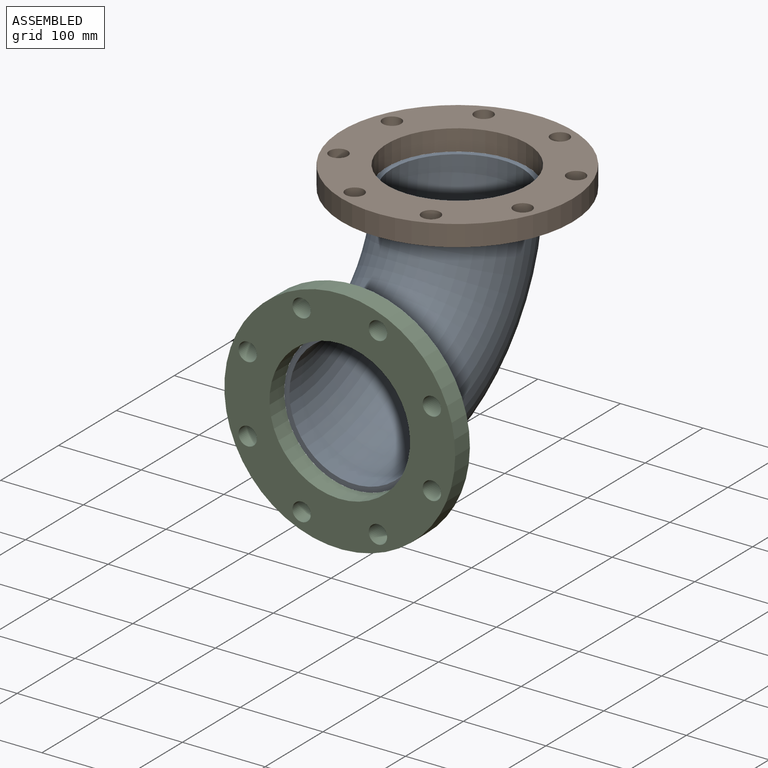
[diagram: assembled view]
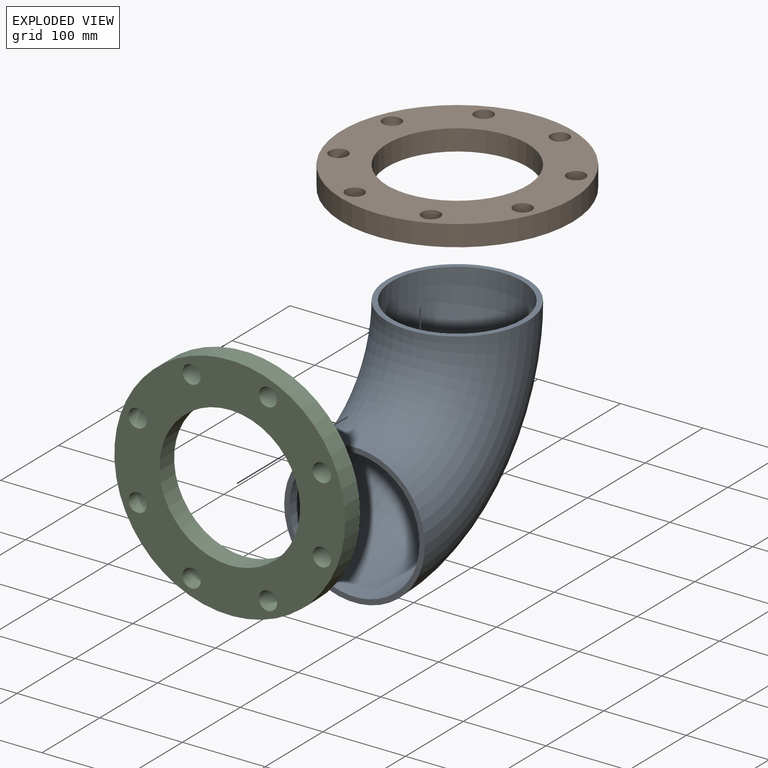
[diagram: exploded view]
GUIDED TOUR — MATED ASSEMBLY (Onshape document 43a8fc64614f2ea8e9b6a46a, AutoMate assembly 43a8fc64614f2ea8e9b6a46a_fa1b35375e052dc830c93c3c_61801490e2f290afbef386f6_default)

This assembly has 3 components, labeled P0..P2 below (a component is one placed occurrence of a part; the same part can appear more than once), held together by 4 mates. A mate is a constraint between two components; its type names the relative motion it leaves free:
  CYLINDRICAL — leaves both rotation about and translation along the listed axis free,
  PLANAR — leaves sliding in the plane through the listed point (normal = the listed direction) and rotation about that normal free.
Axis/direction vectors are unit vectors and 'through' points are millimeter coordinates, both in the assembly's world frame.

MATES
  1. PLANAR "Planar 1": P2 <-> P0, direction (0.000, 1.000, 0.000) through (61.97, -48.20, 30.83) mm
  2. CYLINDRICAL "Cylindrical 2": P1 <-> P0, axis (0.000, 0.000, 1.000) through (61.97, 129.60, 234.03) mm
  3. CYLINDRICAL "Cylindrical 1": P2 <-> P0, axis (0.000, -1.000, 0.000) through (61.97, -73.60, 30.83) mm
  4. PLANAR "Planar 2": P1 <-> P0, direction (0.000, 0.000, -1.000) through (61.97, 129.60, 208.63) mm

ASSEMBLY ORDER
  1. P1 — the base component [order verified]
  2. P0 [order verified]
  3. P2 [order verified]
Order-tag legend:
  [order verified] — this step's position reverses a verified removal order: the component was checked to insert without passing through the ones already placed.

Of the 3 components, 2 carry the full construction recipe — the FeatureScript program that regenerates the part's solid from scratch; the rest are supplied as boundary geometry only.
Each toured component is shown spotlighted twice — in the assembled view, then in the exploded view, where a leader line traces a displaced component back to its assembled socket (saturated green if recipe-attached, orange if geometry-only; every other component desaturated gray) — followed by its recipe or geometry summary and the mates that hold it.
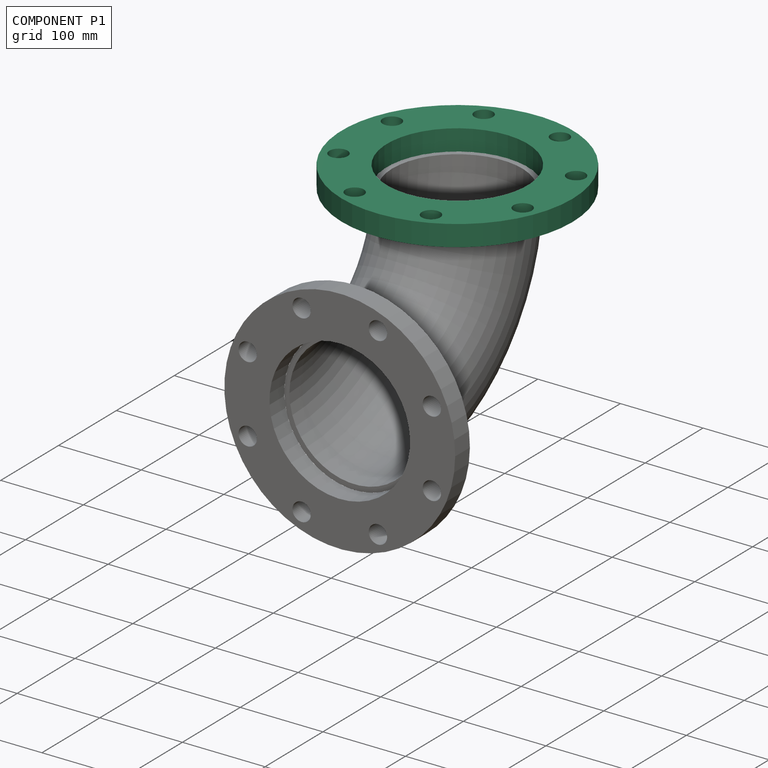
[diagram: component P1 — assembled]
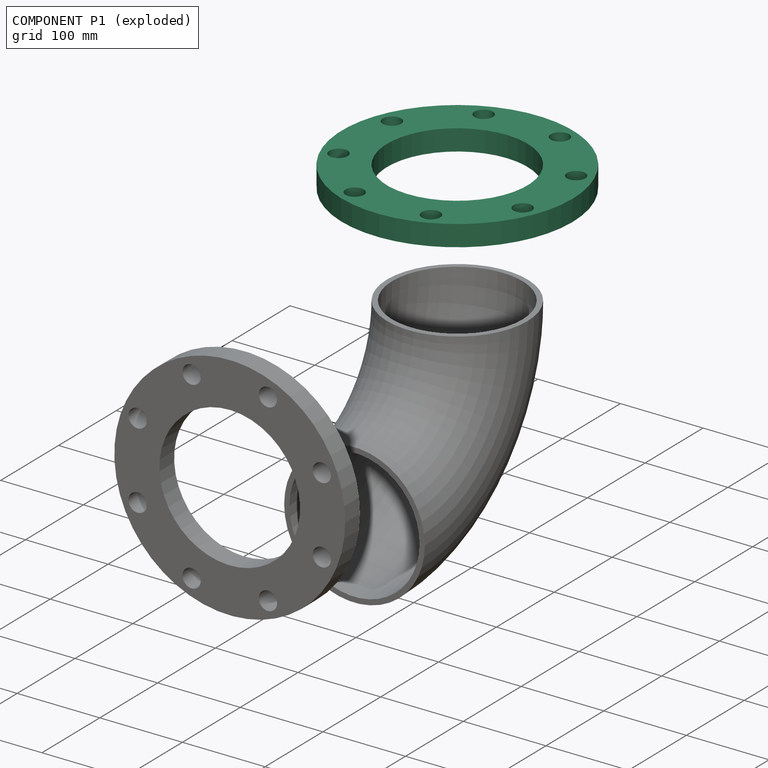
[diagram: component P1 — exploded]
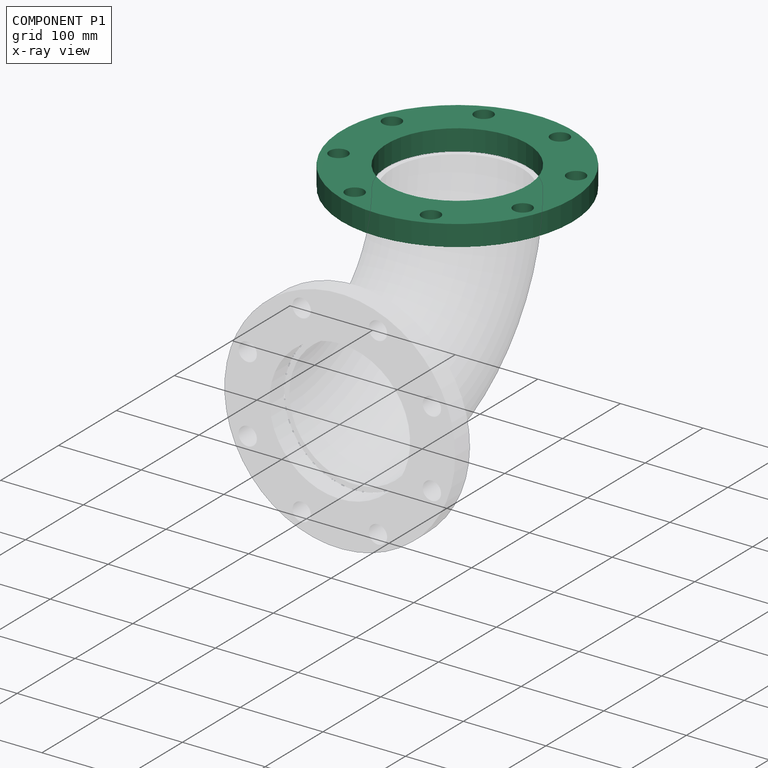
[diagram: component P1 — x-ray view]
COMPONENT P1 — recipe-attached (CADFS 00393971, mesh-verified: the recipe's output STEP matches this component's geometry to below the mesh-comparison resolution (tessellation chordal tolerance ~0.593 mm)).
Held by: CYLINDRICAL mate "Cylindrical 2" to P0; PLANAR mate "Planar 2" to P0.
Construction recipe (FeatureScript — the CAD program that rebuilds this solid; sketch coordinates are in the units given by the * unit suffixes, e.g. mm):

FeatureScript 1511;
import(path : "onshape/std/geometry.fs", version : "1511.0");
import(path : "onshape/std/common.fs", version : "1511.0");
const mm = millimeter;
const VERTEX = EntityType.VERTEX;
const EDGE = EntityType.EDGE;
const FACE = EntityType.FACE;
const BODY = EntityType.BODY;
function v(x, y){return vector(x, y);}
function OD(order){return orderDisambiguation(order);}
function OSD(set){return originalSetDisambiguation(set);}
function TD(topology){return topologyDisambiguation(topology);}
function TDD(query){return trueDependencyDisambiguation(query);}
function sQuery(a, b, c) {return sketchEntityQuery(a, b, c);}

annotation { "Feature Type Name" : "Feature", "Feature Type Description" : "" }
export const myFeature = defineFeature(function(context is Context, id is Id, definition is map)
    precondition{}
    {
        {
            var Q0;
            Q0=qCreatedBy(makeId("Front.planeOp"),FACE);
            var sketch = newSketch(context, id + "F0", { "sketchPlane" : qUnion([Q0])});
            skCircle(sketch, "E0", {"center": v(0, 0) * mm, "radius": 139.7 * mm});
            skCircle(sketch, "E1", {"center": v(0, 0) * mm, "radius": 85.1 * mm});
            skSolve(sketch);
        }
        {
            var Q0;
            Q0 = qSketchRegion(id + "F0", true);
            extrude(context, id + "F1", {"entities" : qUnion([Q0]), "depth" : 25.4 * mm});
        }
        {
            var Q0;
            Q0=makeQuery(id+"F1.opExtrude","CAP_FACE",FACE,{"disambiguationData":[OSD([sQuery(id+"F0.wireOp",EDGE,"E0"),sQuery(id+"F0.wireOp",EDGE,"E1")])],"isStart":false});
            var sketch = newSketch(context, id + "F2", { "sketchPlane" : qUnion([Q0])});
            skPoint(sketch, "E2", {"position": v(0, 120.65) * mm});
            skCircle(sketch, "E3", {"center": v(0, 0) * mm, "radius": 120.65 * mm, "construction": true});
            skPoint(sketch, "E4", {"position": v(-120.65, 0) * mm});
            skPoint(sketch, "E5", {"position": v(0, -120.65) * mm});
            skPoint(sketch, "E6", {"position": v(120.65, 0) * mm});
            skPoint(sketch, "E7", {"position": v(85.31, -85.31) * mm});
            skPoint(sketch, "E8", {"position": v(-85.31, -85.31) * mm});
            skPoint(sketch, "E9", {"position": v(-85.31, 85.31) * mm});
            skLineSegment(sketch, "E10", {"start": v(0, 0) * mm, "end": v(-124.95, -124.95) * mm, "construction": true});
            skPoint(sketch, "E11", {"position": v(85.31, 85.31) * mm});
            skSolve(sketch);
        }
        {
            var Q0;
            Q0=sQuery(id+"F2.wireOp",VERTEX,"E9");
            var Q1;
            Q1=sQuery(id+"F2.wireOp",VERTEX,"E2");
            var Q2;
            Q2=sQuery(id+"F2.wireOp",VERTEX,"E11");
            var Q3;
            Q3=sQuery(id+"F2.wireOp",VERTEX,"E6");
            var Q4;
            Q4=sQuery(id+"F2.wireOp",VERTEX,"E7");
            var Q5;
            Q5=sQuery(id+"F2.wireOp",VERTEX,"E5");
            var Q6;
            Q6=sQuery(id+"F2.wireOp",VERTEX,"E8");
            var Q7;
            Q7=sQuery(id+"F2.wireOp",VERTEX,"E4");
            var Q8;
            Q8=makeQuery(id+"F1.opExtrude","SWEPT_BODY",BODY,{"disambiguationData":[OSD([sQuery(id+"F0.wireOp",EDGE,"E0"),sQuery(id+"F0.wireOp",EDGE,"E1")])]});
            hole(context, id + "F3", {"style" : HoleStyle.SIMPLE, "endStyle" : HoleEndStyle.THROUGH, "holeDiameter" : 22.22 * mm, "isTappedThrough" : true, "tappedDepth" : 12.7 * mm, "tapClearance" : 3, "locations" : qUnion([Q0, Q1, Q2, Q3, Q4, Q5, Q6, Q7]), "scope" : qUnion([Q8])});
        }
    });
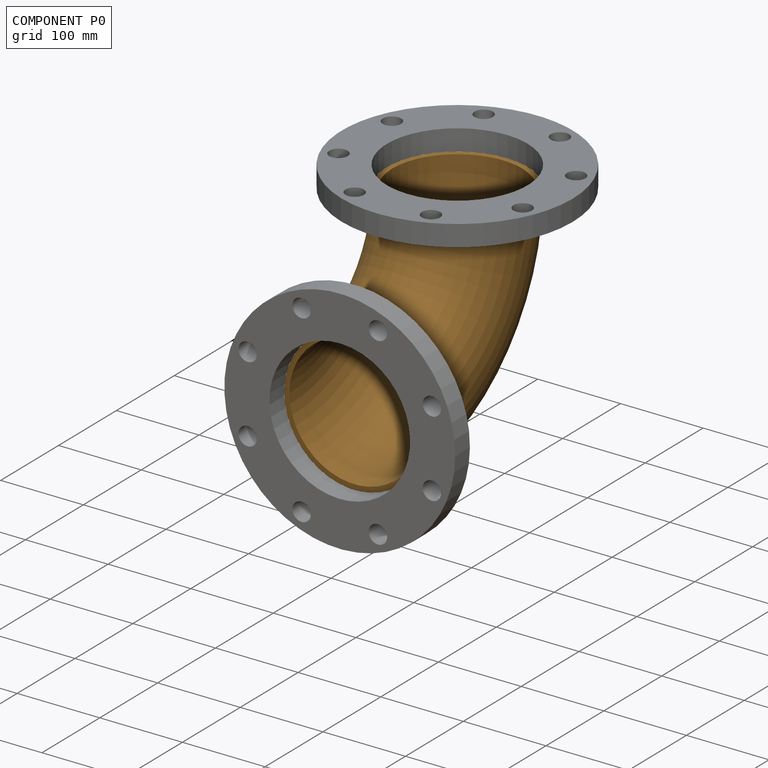
[diagram: component P0 — assembled]
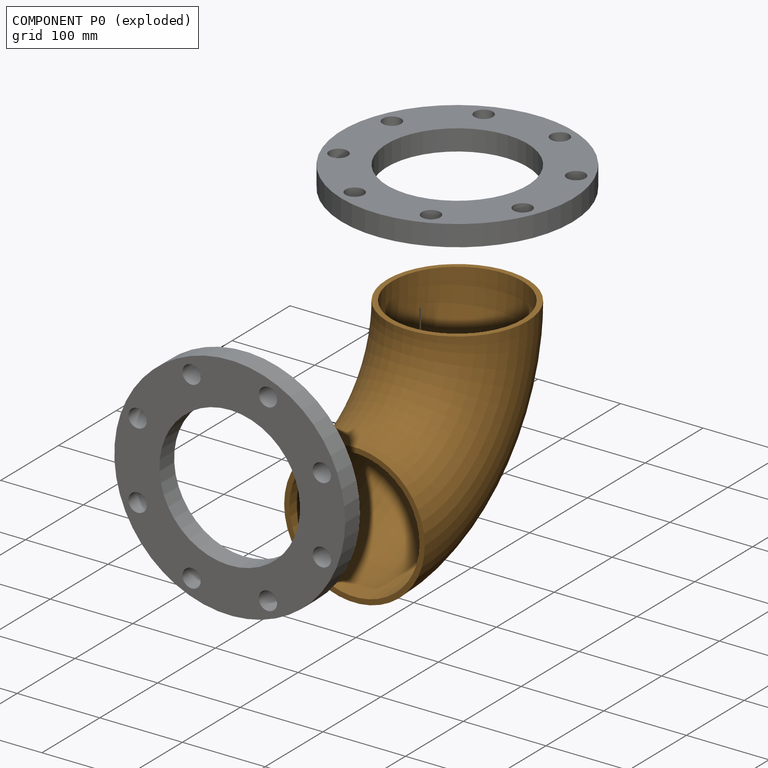
[diagram: component P0 — exploded]
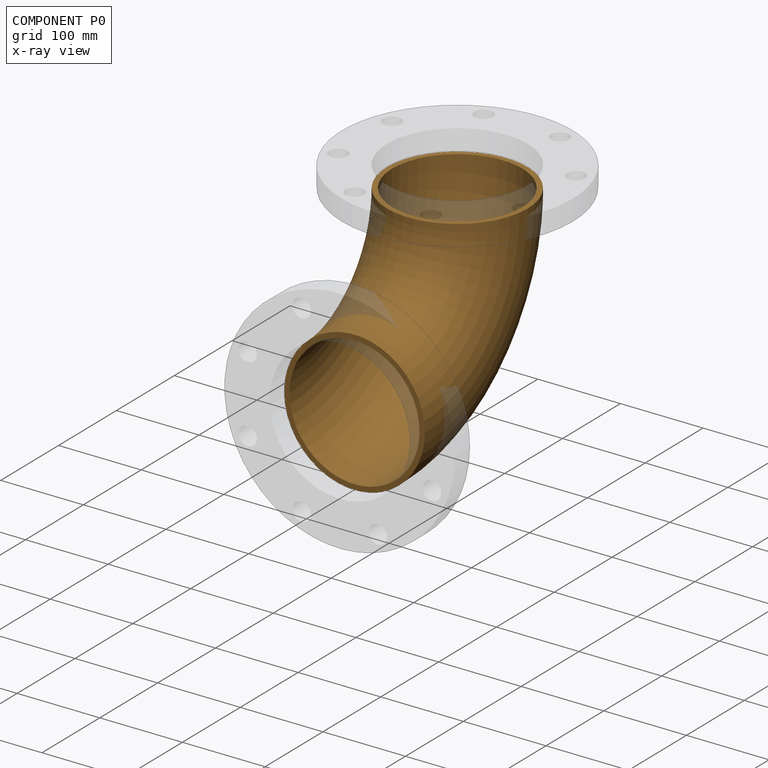
[diagram: component P0 — x-ray view]
COMPONENT P0 — geometry summary (no construction recipe available for this part):
  bounding box: 284.6 x 284.6 x 170.2 mm
  B-rep topology: 1 solid, 4 faces, 12 edges
  volume: 912785 mm^3 (7% of its bounding box)
  symmetry: mirror-symmetric across its x mid-plane
Held by: PLANAR mate "Planar 1" to P2; CYLINDRICAL mate "Cylindrical 2" to P1; CYLINDRICAL mate "Cylindrical 1" to P2; PLANAR mate "Planar 2" to P1.
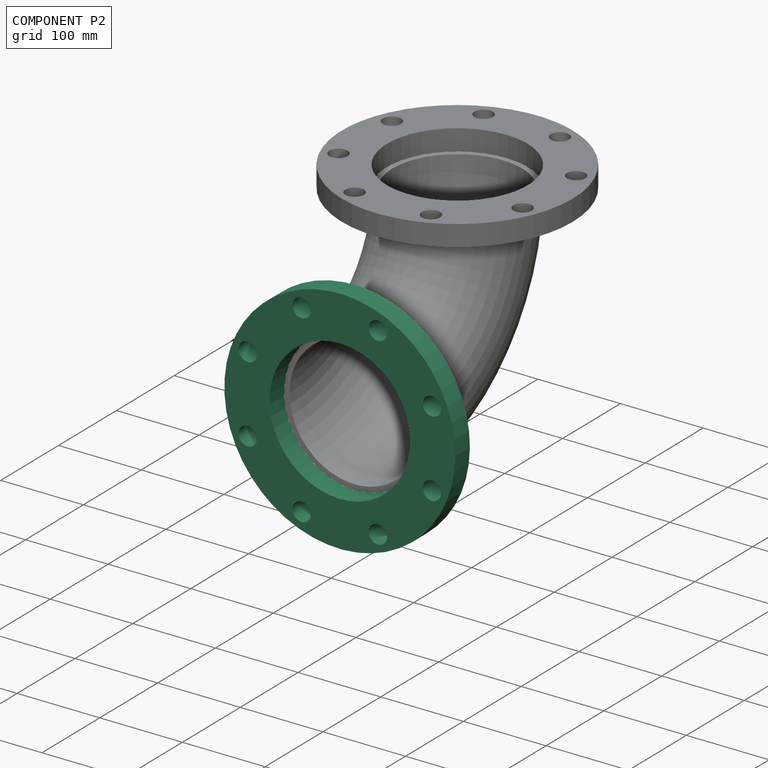
[diagram: component P2 — assembled]
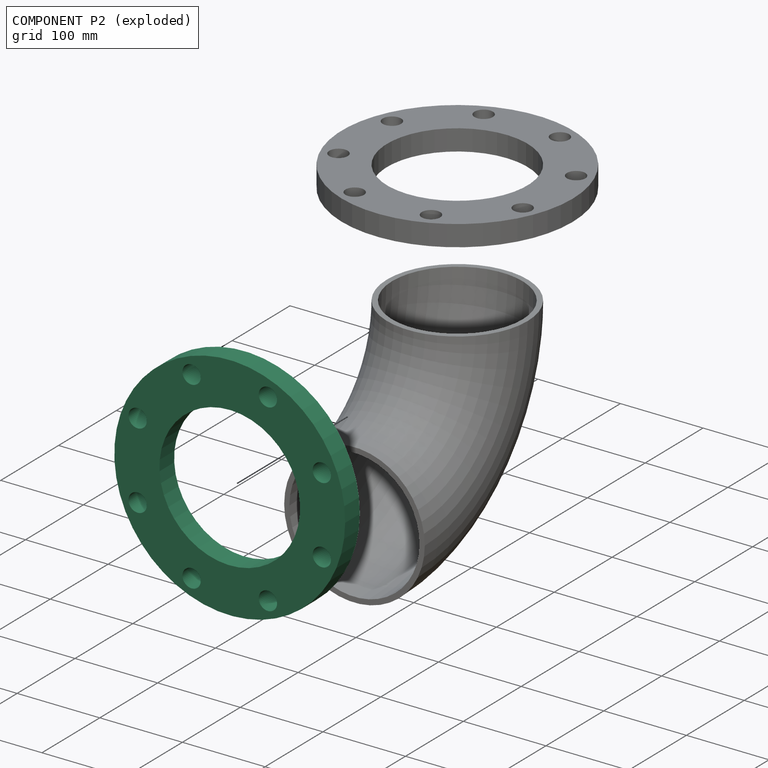
[diagram: component P2 — exploded]
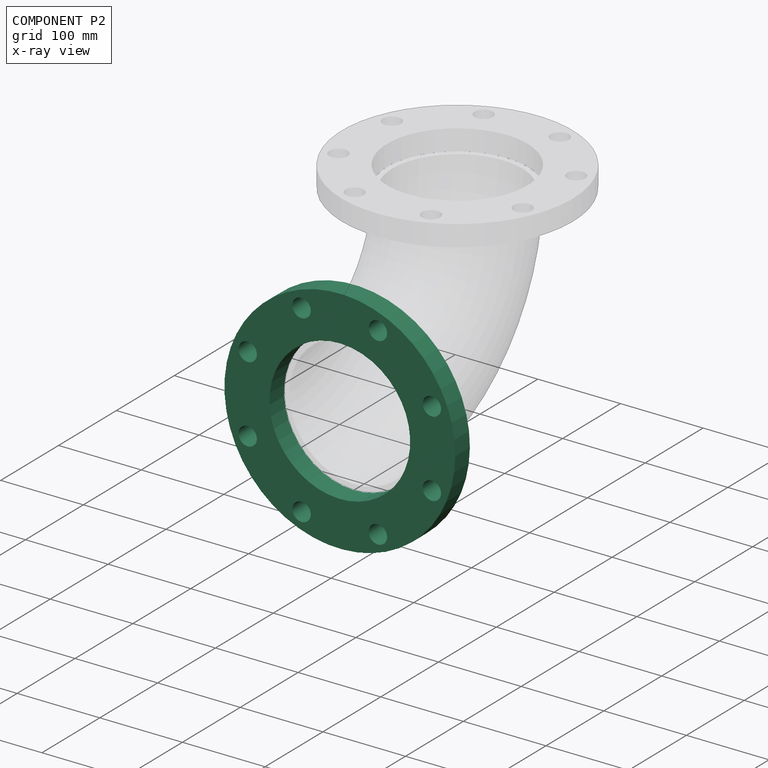
[diagram: component P2 — x-ray view]
COMPONENT P2 — same part as P1 (CADFS 00393971); its construction recipe is shown at P1.
Held by: PLANAR mate "Planar 1" to P0; CYLINDRICAL mate "Cylindrical 1" to P0.
PROVENANCE & LICENSES
Assembly (occurrences, transforms, mates, per-part STEP geometry): AutoMate dataset, Zenodo record 7776208, CC0.
Construction recipes: CADFS (HuggingFace VladPyatov/CADFS, CC-BY-4.0, layered over the ABC dataset), FeatureScript reconstruction programs keyed by ABC model id.
Join: ABC meta listings map ABC model id -> Onshape documentId; within a shared document, parts are matched by geometric signature (bounding-box dims + volume at 0.1% relative tolerance, exact B-rep face/solid counts).
Verification: 2 of this assembly's 3 components carry a recipe attachment, and every attachment is mesh-verified: the CADFS STEP and the AutoMate member STEP were compared as meshes in their shared local frame (symmetric sampled-point-to-mesh distance); worst across the 2 attachments: below the mesh-comparison resolution (tessellation chordal tolerance ~0.593 mm) on a 396 mm part.
Renders: orthographic iso camera (az 35 / el 25); the floor grid conveys scale (grid pitch printed in each image; no ruler). In the exploded view each component is displaced by its stored offset vector: the offsets alone carry the explosion direction (mate normal/axis signs are not orientation cues and do not encode it), and separation distances are assigned per mate-chain, not proportionally to assembly-order depth.
